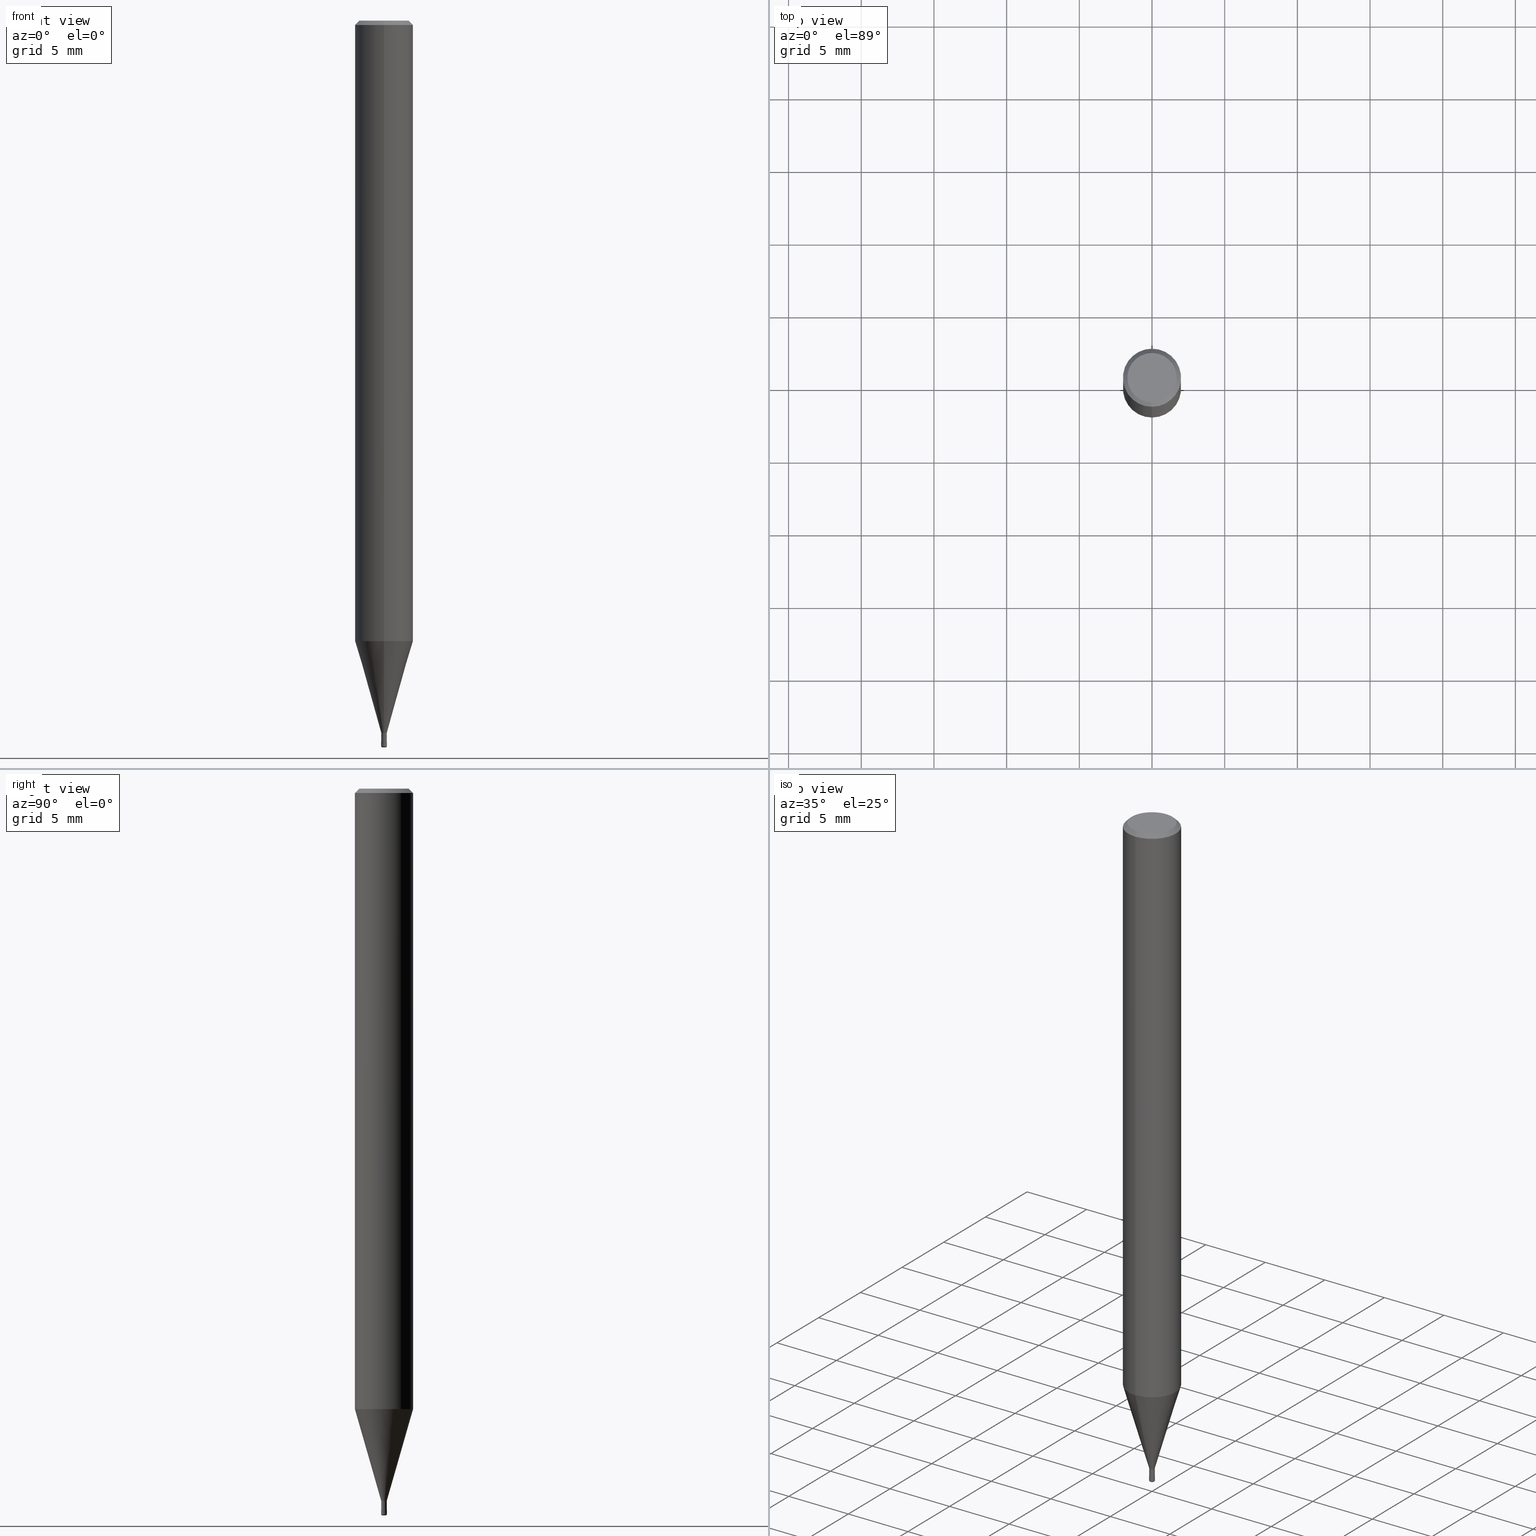
[diagram: canonical four-view strip — front | top / right | iso, engineering-drawing reading convention]
A machine part, canonical four-view strip (front | top / right | iso — engineering-drawing reading convention). The complete STEP part file that produces these views, byte-faithful:
ISO-10303-21;
HEADER;
FILE_DESCRIPTION(('no description'),'unknown implementation level');
FILE_NAME('HLRS2004-01-010-Huellk.stp','  ',('CIMSOURCE GmbH'),('CADClick - KiM GmbH - www.kimweb.de'),'unknown preprocess','ACIS','unknown authorization');
FILE_SCHEMA(('automotive_design'));
ENDSEC;
DATA;
#1=MECHANICAL_DESIGN_GEOMETRIC_PRESENTATION_REPRESENTATION(' ',(#14,#15,#16,#17,#18,#19,#20,#21,#22,#23,#24,#25,#26,#27,#28,#29,#30,#31,#32,#33,#34,#35,#36,#37,#38,#39,#40,#41,#42,#43,#44,#45,#46,#47,#48,#49,#50,#51,#52,#53,#54,#55,#56,#57,#58,#59,#60,#61,#62,#63,#64,#65,#66,#67,#68,#69,#70,#71,#72,#73,#74,#75,#76,#77,#78,#79,#80),#10);
#2=PRODUCT_DEFINITION_CONTEXT('',#81,'design');
#3=APPLICATION_PROTOCOL_DEFINITION('INTERNATIONAL STANDARD','automotive_design',1994,#81);
#4=PRODUCT_CATEGORY_RELATIONSHIP('NONE','NONE',#82,#83);
#5=SHAPE_DEFINITION_REPRESENTATION(#84,#85);
#6=PRODUCT_DEFINITION_CONTEXT('',#86,'design');
#7=APPLICATION_PROTOCOL_DEFINITION('INTERNATIONAL STANDARD','automotive_design',1994,#86);
#8=PRODUCT_CATEGORY_RELATIONSHIP('NONE','NONE',#87,#88);
#9=SHAPE_DEFINITION_REPRESENTATION(#89,#90);
#10= (GEOMETRIC_REPRESENTATION_CONTEXT(3)GLOBAL_UNCERTAINTY_ASSIGNED_CONTEXT((#93))GLOBAL_UNIT_ASSIGNED_CONTEXT((#95,#96,#97))REPRESENTATION_CONTEXT('NONE','WORKSPACE'));
#14=STYLED_ITEM('',(#99),#100);
#15=STYLED_ITEM('',(#101),#102);
#16=STYLED_ITEM('',(#103),#104);
#17=STYLED_ITEM('',(#105),#106);
#18=STYLED_ITEM('',(#107),#108);
#19=STYLED_ITEM('',(#109),#110);
#20=STYLED_ITEM('',(#111),#112);
#21=STYLED_ITEM('',(#113),#114);
#22=STYLED_ITEM('',(#115),#116);
#23=STYLED_ITEM('',(#117),#118);
#24=STYLED_ITEM('',(#119),#120);
#25=STYLED_ITEM('',(#121),#122);
#26=STYLED_ITEM('',(#123),#124);
#27=STYLED_ITEM('',(#125),#126);
#28=STYLED_ITEM('',(#127),#128);
#29=STYLED_ITEM('',(#129),#130);
#30=STYLED_ITEM('',(#131),#132);
#31=STYLED_ITEM('',(#133),#134);
#32=STYLED_ITEM('',(#135),#136);
#33=STYLED_ITEM('',(#137),#138);
#34=STYLED_ITEM('',(#139),#140);
#35=STYLED_ITEM('',(#141),#142);
#36=STYLED_ITEM('',(#143),#144);
#37=STYLED_ITEM('',(#145),#146);
#38=STYLED_ITEM('',(#147),#148);
#39=STYLED_ITEM('',(#149),#150);
#40=STYLED_ITEM('',(#151),#152);
#41=STYLED_ITEM('',(#153),#154);
#42=STYLED_ITEM('',(#155),#156);
#43=STYLED_ITEM('',(#157),#158);
#44=STYLED_ITEM('',(#159),#160);
#45=STYLED_ITEM('',(#161),#162);
#46=STYLED_ITEM('',(#163),#164);
#47=STYLED_ITEM('',(#165),#166);
#48=STYLED_ITEM('',(#167),#168);
#49=STYLED_ITEM('',(#169),#170);
#50=STYLED_ITEM('',(#171),#172);
#51=STYLED_ITEM('',(#173),#174);
#52=STYLED_ITEM('',(#175),#176);
#53=STYLED_ITEM('',(#177),#178);
#54=STYLED_ITEM('',(#179),#180);
#55=STYLED_ITEM('',(#181),#182);
#56=STYLED_ITEM('',(#183),#184);
#57=STYLED_ITEM('',(#185),#186);
#58=STYLED_ITEM('',(#187),#188);
#59=STYLED_ITEM('',(#189),#190);
#60=STYLED_ITEM('',(#191),#192);
#61=STYLED_ITEM('',(#193),#194);
#62=STYLED_ITEM('',(#195),#196);
#63=STYLED_ITEM('',(#197),#198);
#64=STYLED_ITEM('',(#199),#200);
#65=STYLED_ITEM('',(#201),#202);
#66=STYLED_ITEM('',(#203),#204);
#67=STYLED_ITEM('',(#205),#206);
#68=STYLED_ITEM('',(#207),#208);
#69=STYLED_ITEM('',(#209),#210);
#70=STYLED_ITEM('',(#211),#212);
#71=STYLED_ITEM('',(#213),#214);
#72=STYLED_ITEM('',(#215),#216);
#73=STYLED_ITEM('',(#217),#218);
#74=STYLED_ITEM('',(#219),#220);
#75=STYLED_ITEM('',(#221),#222);
#76=STYLED_ITEM('',(#223),#224);
#77=STYLED_ITEM('',(#225),#226);
#78=STYLED_ITEM('',(#227),#228);
#79=STYLED_ITEM('',(#229),#230);
#80=STYLED_ITEM('',(#231),#232);
#81=APPLICATION_CONTEXT(' ');
#82=PRODUCT_CATEGORY('part','NONE');
#83=PRODUCT_RELATED_PRODUCT_CATEGORY('detail',' ',(#233));
#84=PRODUCT_DEFINITION_SHAPE('NONE','NONE',#234);
#85=ADVANCED_BREP_SHAPE_REPRESENTATION('1',(#146,#235),#10);
#86=APPLICATION_CONTEXT(' ');
#87=PRODUCT_CATEGORY('part','NONE');
#88=PRODUCT_RELATED_PRODUCT_CATEGORY('detail',' ',(#236));
#89=PRODUCT_DEFINITION_SHAPE('NONE','NONE',#237);
#90=ADVANCED_BREP_SHAPE_REPRESENTATION('2',(#104,#238),#10);
#93=UNCERTAINTY_MEASURE_WITH_UNIT(LENGTH_MEASURE(1.0E-006),#95,'','');
#95= (CONVERSION_BASED_UNIT('MILLIMETRE',#241)LENGTH_UNIT()NAMED_UNIT(#244));
#96= (NAMED_UNIT(#246)PLANE_ANGLE_UNIT()SI_UNIT($,.RADIAN.));
#97= (NAMED_UNIT(#246)SOLID_ANGLE_UNIT()SI_UNIT($,.STERADIAN.));
#99=PRESENTATION_STYLE_ASSIGNMENT((#252));
#100=ADVANCED_FACE('',(#253),#254,.T.);
#101=PRESENTATION_STYLE_ASSIGNMENT((#255));
#102=VERTEX_POINT('',#256);
#103=PRESENTATION_STYLE_ASSIGNMENT((#257));
#104=MANIFOLD_SOLID_BREP('2',#258);
#105=PRESENTATION_STYLE_ASSIGNMENT((#259));
#106=VERTEX_POINT('',#260);
#107=PRESENTATION_STYLE_ASSIGNMENT((#261));
#108=EDGE_CURVE('',#208,#148,#262,.T.);
#109=PRESENTATION_STYLE_ASSIGNMENT((#263));
#110=EDGE_CURVE('',#172,#216,#264,.T.);
#111=PRESENTATION_STYLE_ASSIGNMENT((#265));
#112=EDGE_CURVE('',#168,#204,#266,.T.);
#113=PRESENTATION_STYLE_ASSIGNMENT((#267));
#114=EDGE_CURVE('',#216,#194,#268,.T.);
#115=PRESENTATION_STYLE_ASSIGNMENT((#269));
#116=VERTEX_POINT('',#270);
#117=PRESENTATION_STYLE_ASSIGNMENT((#271));
#118=ADVANCED_FACE('',(#272,#273),#274,.T.);
#119=PRESENTATION_STYLE_ASSIGNMENT((#275));
#120=ADVANCED_FACE('',(#276),#277,.T.);
#121=PRESENTATION_STYLE_ASSIGNMENT((#278));
#122=EDGE_CURVE('',#166,#218,#279,.T.);
#123=PRESENTATION_STYLE_ASSIGNMENT((#280));
#124=ADVANCED_FACE('',(#281),#282,.T.);
#125=PRESENTATION_STYLE_ASSIGNMENT((#283));
#126=EDGE_CURVE('',#172,#208,#284,.T.);
#127=PRESENTATION_STYLE_ASSIGNMENT((#285));
#128=EDGE_CURVE('',#174,#102,#286,.T.);
#129=PRESENTATION_STYLE_ASSIGNMENT((#287));
#130=EDGE_CURVE('',#136,#152,#288,.T.);
#131=PRESENTATION_STYLE_ASSIGNMENT((#289));
#132=EDGE_CURVE('',#232,#148,#290,.T.);
#133=PRESENTATION_STYLE_ASSIGNMENT((#291));
#134=EDGE_CURVE('',#116,#204,#292,.T.);
#135=PRESENTATION_STYLE_ASSIGNMENT((#293));
#136=VERTEX_POINT('',#294);
#137=PRESENTATION_STYLE_ASSIGNMENT((#295));
#138=EDGE_CURVE('',#152,#116,#296,.T.);
#139=PRESENTATION_STYLE_ASSIGNMENT((#297));
#140=EDGE_CURVE('',#152,#136,#298,.T.);
#141=PRESENTATION_STYLE_ASSIGNMENT((#299));
#142=VERTEX_POINT('',#300);
#143=PRESENTATION_STYLE_ASSIGNMENT((#301));
#144=EDGE_CURVE('',#194,#208,#302,.T.);
#145=PRESENTATION_STYLE_ASSIGNMENT((#303));
#146=MANIFOLD_SOLID_BREP('1',#304);
#147=PRESENTATION_STYLE_ASSIGNMENT((#305));
#148=VERTEX_POINT('',#306);
#149=PRESENTATION_STYLE_ASSIGNMENT((#307));
#150=EDGE_CURVE('',#166,#142,#308,.T.);
#151=PRESENTATION_STYLE_ASSIGNMENT((#309));
#152=VERTEX_POINT('',#310);
#153=PRESENTATION_STYLE_ASSIGNMENT((#311));
#154=EDGE_CURVE('',#208,#172,#312,.T.);
#155=PRESENTATION_STYLE_ASSIGNMENT((#313));
#156=EDGE_CURVE('',#166,#102,#314,.T.);
#157=PRESENTATION_STYLE_ASSIGNMENT((#315));
#158=ADVANCED_FACE('',(#316),#317,.T.);
#159=PRESENTATION_STYLE_ASSIGNMENT((#318));
#160=EDGE_CURVE('',#194,#216,#319,.T.);
#161=PRESENTATION_STYLE_ASSIGNMENT((#320));
#162=VERTEX_POINT('',#321);
#163=PRESENTATION_STYLE_ASSIGNMENT((#322));
#164=EDGE_CURVE('',#116,#106,#323,.T.);
#165=PRESENTATION_STYLE_ASSIGNMENT((#324));
#166=VERTEX_POINT('',#325);
#167=PRESENTATION_STYLE_ASSIGNMENT((#326));
#168=VERTEX_POINT('',#327);
#169=PRESENTATION_STYLE_ASSIGNMENT((#328));
#170=ADVANCED_FACE('',(#329),#330,.T.);
#171=PRESENTATION_STYLE_ASSIGNMENT((#331));
#172=VERTEX_POINT('',#332);
#173=PRESENTATION_STYLE_ASSIGNMENT((#333));
#174=VERTEX_POINT('',#334);
#175=PRESENTATION_STYLE_ASSIGNMENT((#335));
#176=ADVANCED_FACE('',(#336),#337,.T.);
#177=PRESENTATION_STYLE_ASSIGNMENT((#338));
#178=ADVANCED_FACE('',(#339),#340,.T.);
#179=PRESENTATION_STYLE_ASSIGNMENT((#341));
#180=ADVANCED_FACE('',(#342),#343,.T.);
#181=PRESENTATION_STYLE_ASSIGNMENT((#344));
#182=ADVANCED_FACE('',(#345),#346,.T.);
#183=PRESENTATION_STYLE_ASSIGNMENT((#347));
#184=EDGE_CURVE('',#102,#166,#348,.T.);
#185=PRESENTATION_STYLE_ASSIGNMENT((#349));
#186=ADVANCED_FACE('',(#350),#351,.T.);
#187=PRESENTATION_STYLE_ASSIGNMENT((#352));
#188=ADVANCED_FACE('',(#353),#354,.T.);
#189=PRESENTATION_STYLE_ASSIGNMENT((#355));
#190=EDGE_CURVE('',#148,#232,#356,.T.);
#191=PRESENTATION_STYLE_ASSIGNMENT((#357));
#192=EDGE_CURVE('',#232,#172,#358,.T.);
#193=PRESENTATION_STYLE_ASSIGNMENT((#359));
#194=VERTEX_POINT('',#360);
#195=PRESENTATION_STYLE_ASSIGNMENT((#361));
#196=EDGE_CURVE('',#106,#116,#362,.T.);
#197=PRESENTATION_STYLE_ASSIGNMENT((#363));
#198=EDGE_CURVE('',#218,#162,#364,.T.);
#199=PRESENTATION_STYLE_ASSIGNMENT((#365));
#200=ADVANCED_FACE('',(#366),#367,.T.);
#201=PRESENTATION_STYLE_ASSIGNMENT((#368));
#202=ADVANCED_FACE('',(#369),#370,.T.);
#203=PRESENTATION_STYLE_ASSIGNMENT((#371));
#204=VERTEX_POINT('',#372);
#205=PRESENTATION_STYLE_ASSIGNMENT((#373));
#206=EDGE_CURVE('',#168,#106,#374,.T.);
#207=PRESENTATION_STYLE_ASSIGNMENT((#375));
#208=VERTEX_POINT('',#376);
#209=PRESENTATION_STYLE_ASSIGNMENT((#377));
#210=EDGE_CURVE('',#204,#168,#378,.T.);
#211=PRESENTATION_STYLE_ASSIGNMENT((#379));
#212=ADVANCED_FACE('',(#380),#381,.T.);
#213=PRESENTATION_STYLE_ASSIGNMENT((#382));
#214=EDGE_CURVE('',#106,#136,#383,.T.);
#215=PRESENTATION_STYLE_ASSIGNMENT((#384));
#216=VERTEX_POINT('',#385);
#217=PRESENTATION_STYLE_ASSIGNMENT((#386));
#218=VERTEX_POINT('',#387);
#219=PRESENTATION_STYLE_ASSIGNMENT((#388));
#220=EDGE_CURVE('',#174,#142,#389,.T.);
#221=PRESENTATION_STYLE_ASSIGNMENT((#390));
#222=EDGE_CURVE('',#162,#218,#391,.T.);
#223=PRESENTATION_STYLE_ASSIGNMENT((#392));
#224=EDGE_CURVE('',#162,#102,#393,.T.);
#225=PRESENTATION_STYLE_ASSIGNMENT((#394));
#226=ADVANCED_FACE('',(#395),#396,.T.);
#227=PRESENTATION_STYLE_ASSIGNMENT((#397));
#228=ADVANCED_FACE('',(#398),#399,.T.);
#229=PRESENTATION_STYLE_ASSIGNMENT((#400));
#230=EDGE_CURVE('',#142,#174,#401,.T.);
#231=PRESENTATION_STYLE_ASSIGNMENT((#402));
#232=VERTEX_POINT('',#403);
#233=PRODUCT('1','1','PART-1-DESC',(#404));
#234=PRODUCT_DEFINITION('NONE','NONE',#405,#2);
#235=AXIS2_PLACEMENT_3D('',#406,#407,#408);
#236=PRODUCT('2','2','PART-2-DESC',(#409));
#237=PRODUCT_DEFINITION('NONE','NONE',#410,#6);
#238=AXIS2_PLACEMENT_3D('',#411,#412,#413);
#241=LENGTH_MEASURE_WITH_UNIT(LENGTH_MEASURE(1.0),#414);
#244=DIMENSIONAL_EXPONENTS(1.0,0.0,0.0,0.0,0.0,0.0,0.0);
#246=DIMENSIONAL_EXPONENTS(0.0,0.0,0.0,0.0,0.0,0.0,0.0);
#252=SURFACE_STYLE_USAGE(.BOTH.,#415);
#253=FACE_OUTER_BOUND('',#416,.T.);
#254=PLANE('',#417);
#255=POINT_STYLE(' ',#418,POSITIVE_LENGTH_MEASURE(1.0E-006),#419);
#256=CARTESIAN_POINT('',(0.0,0.2,-49.9));
#257=SURFACE_STYLE_USAGE(.BOTH.,#420);
#258=CLOSED_SHELL('',(#124,#178,#120,#158,#228,#100));
#259=POINT_STYLE(' ',#421,POSITIVE_LENGTH_MEASURE(1.0E-006),#422);
#260=CARTESIAN_POINT('',(2.44921270764475E-016,-2.0,-0.299999999999997));
#261=CURVE_STYLE('',#423,POSITIVE_LENGTH_MEASURE(1.0E-006),#424);
#262=LINE('',#425,#426);
#263=CURVE_STYLE('',#427,POSITIVE_LENGTH_MEASURE(1.0E-006),#428);
#264=LINE('',#429,#430);
#265=CURVE_STYLE('',#431,POSITIVE_LENGTH_MEASURE(1.0E-006),#432);
#266=CIRCLE('',#433,2.0);
#267=CURVE_STYLE('',#434,POSITIVE_LENGTH_MEASURE(1.0E-006),#435);
#268=CIRCLE('',#436,0.18995);
#269=POINT_STYLE(' ',#437,POSITIVE_LENGTH_MEASURE(1.0E-006),#438);
#270=CARTESIAN_POINT('',(0.0,2.0,-0.299999999999997));
#271=SURFACE_STYLE_USAGE(.BOTH.,#439);
#272=FACE_OUTER_BOUND('',#440,.T.);
#273=FACE_BOUND('',#441,.T.);
#274=PLANE('',#442);
#275=SURFACE_STYLE_USAGE(.BOTH.,#443);
#276=FACE_OUTER_BOUND('',#444,.T.);
#277=PLANE('',#445);
#278=CURVE_STYLE('',#446,POSITIVE_LENGTH_MEASURE(1.0E-006),#447);
#279=CIRCLE('',#448,0.1);
#280=SURFACE_STYLE_USAGE(.BOTH.,#449);
#281=FACE_OUTER_BOUND('',#450,.T.);
#282=TOROIDAL_SURFACE('',#451,0.0999999999999997,0.1);
#283=CURVE_STYLE('',#452,POSITIVE_LENGTH_MEASURE(1.0E-006),#453);
#284=CIRCLE('',#454,0.18995);
#285=CURVE_STYLE('',#455,POSITIVE_LENGTH_MEASURE(1.0E-006),#456);
#286=LINE('',#457,#458);
#287=CURVE_STYLE('',#459,POSITIVE_LENGTH_MEASURE(1.0E-006),#460);
#288=CIRCLE('',#461,1.7);
#289=CURVE_STYLE('',#462,POSITIVE_LENGTH_MEASURE(1.0E-006),#463);
#290=CIRCLE('',#464,1.99995);
#291=CURVE_STYLE('',#465,POSITIVE_LENGTH_MEASURE(1.0E-006),#466);
#292=LINE('',#467,#468);
#293=POINT_STYLE(' ',#469,POSITIVE_LENGTH_MEASURE(1.0E-006),#470);
#294=CARTESIAN_POINT('',(2.08183080149804E-016,-1.7,0.0));
#295=CURVE_STYLE('',#471,POSITIVE_LENGTH_MEASURE(1.0E-006),#472);
#296=LINE('',#473,#474);
#297=CURVE_STYLE('',#475,POSITIVE_LENGTH_MEASURE(1.0E-006),#476);
#298=CIRCLE('',#477,1.7);
#299=POINT_STYLE(' ',#478,POSITIVE_LENGTH_MEASURE(1.0E-006),#479);
#300=CARTESIAN_POINT('',(2.44798810129093E-017,-0.1999,-49.6));
#301=CURVE_STYLE('',#480,POSITIVE_LENGTH_MEASURE(1.0E-006),#481);
#302=LINE('',#482,#483);
#303=SURFACE_STYLE_USAGE(.BOTH.,#484);
#304=CLOSED_SHELL('',(#200,#186,#182,#202,#118,#180,#226,#176,#188,#170,#212));
#305=POINT_STYLE(' ',#485,POSITIVE_LENGTH_MEASURE(1.0E-006),#486);
#306=CARTESIAN_POINT('',(2.44915147732706E-016,-1.99995,-42.688));
#307=CURVE_STYLE('',#487,POSITIVE_LENGTH_MEASURE(1.0E-006),#488);
#308=LINE('',#489,#490);
#309=POINT_STYLE(' ',#491,POSITIVE_LENGTH_MEASURE(1.0E-006),#492);
#310=CARTESIAN_POINT('',(0.0,1.7,0.0));
#311=CURVE_STYLE('',#493,POSITIVE_LENGTH_MEASURE(1.0E-006),#494);
#312=CIRCLE('',#495,0.18995);
#313=CURVE_STYLE('',#496,POSITIVE_LENGTH_MEASURE(1.0E-006),#497);
#314=CIRCLE('',#498,0.2);
#315=SURFACE_STYLE_USAGE(.BOTH.,#499);
#316=FACE_OUTER_BOUND('',#500,.T.);
#317=CONICAL_SURFACE('',#501,0.19995,0.000333333320987711);
#318=CURVE_STYLE('',#502,POSITIVE_LENGTH_MEASURE(1.0E-006),#503);
#319=CIRCLE('',#504,0.18995);
#320=POINT_STYLE(' ',#505,POSITIVE_LENGTH_MEASURE(1.0E-006),#506);
#321=CARTESIAN_POINT('',(0.0,0.1,-50.0));
#322=CURVE_STYLE('',#507,POSITIVE_LENGTH_MEASURE(1.0E-006),#508);
#323=CIRCLE('',#509,2.0);
#324=POINT_STYLE(' ',#510,POSITIVE_LENGTH_MEASURE(1.0E-006),#511);
#325=CARTESIAN_POINT('',(2.44921270764475E-017,-0.2,-49.9));
#326=POINT_STYLE(' ',#512,POSITIVE_LENGTH_MEASURE(1.0E-006),#513);
#327=CARTESIAN_POINT('',(2.44921270764475E-016,-2.0,-42.688));
#328=SURFACE_STYLE_USAGE(.BOTH.,#514);
#329=FACE_OUTER_BOUND('',#515,.T.);
#330=CYLINDRICAL_SURFACE('',#516,0.18995);
#331=POINT_STYLE(' ',#517,POSITIVE_LENGTH_MEASURE(1.0E-006),#518);
#332=CARTESIAN_POINT('',(0.0,0.18995,-49.0));
#333=POINT_STYLE(' ',#519,POSITIVE_LENGTH_MEASURE(1.0E-006),#520);
#334=CARTESIAN_POINT('',(0.0,0.1999,-49.6));
#335=SURFACE_STYLE_USAGE(.BOTH.,#521);
#336=FACE_OUTER_BOUND('',#522,.T.);
#337=CYLINDRICAL_SURFACE('',#523,2.0);
#338=SURFACE_STYLE_USAGE(.BOTH.,#524);
#339=FACE_OUTER_BOUND('',#525,.T.);
#340=CONICAL_SURFACE('',#526,0.19995,0.000333333320987711);
#341=SURFACE_STYLE_USAGE(.BOTH.,#527);
#342=FACE_OUTER_BOUND('',#528,.T.);
#343=PLANE('',#529);
#344=SURFACE_STYLE_USAGE(.BOTH.,#530);
#345=FACE_OUTER_BOUND('',#531,.T.);
#346=CYLINDRICAL_SURFACE('',#532,2.0);
#347=CURVE_STYLE('',#533,POSITIVE_LENGTH_MEASURE(1.0E-006),#534);
#348=CIRCLE('',#535,0.2);
#349=SURFACE_STYLE_USAGE(.BOTH.,#536);
#350=FACE_OUTER_BOUND('',#537,.T.);
#351=CONICAL_SURFACE('',#538,1.09495,0.279261921280279);
#352=SURFACE_STYLE_USAGE(.BOTH.,#539);
#353=FACE_OUTER_BOUND('',#540,.T.);
#354=CONICAL_SURFACE('',#541,1.09495,0.279261921280279);
#355=CURVE_STYLE('',#542,POSITIVE_LENGTH_MEASURE(1.0E-006),#543);
#356=CIRCLE('',#544,1.99995);
#357=CURVE_STYLE('',#545,POSITIVE_LENGTH_MEASURE(1.0E-006),#546);
#358=LINE('',#547,#548);
#359=POINT_STYLE(' ',#549,POSITIVE_LENGTH_MEASURE(1.0E-006),#550);
#360=CARTESIAN_POINT('',(2.32613976908561E-017,-0.18995,-49.6));
#361=CURVE_STYLE('',#551,POSITIVE_LENGTH_MEASURE(1.0E-006),#552);
#362=CIRCLE('',#553,2.0);
#363=CURVE_STYLE('',#554,POSITIVE_LENGTH_MEASURE(1.0E-006),#555);
#364=CIRCLE('',#556,0.1);
#365=SURFACE_STYLE_USAGE(.BOTH.,#557);
#366=FACE_OUTER_BOUND('',#558,.T.);
#367=CYLINDRICAL_SURFACE('',#559,0.18995);
#368=SURFACE_STYLE_USAGE(.BOTH.,#560);
#369=FACE_OUTER_BOUND('',#561,.T.);
#370=CONICAL_SURFACE('',#562,1.85,0.785398163397453);
#371=POINT_STYLE(' ',#563,POSITIVE_LENGTH_MEASURE(1.0E-006),#564);
#372=CARTESIAN_POINT('',(0.0,2.0,-42.688));
#373=CURVE_STYLE('',#565,POSITIVE_LENGTH_MEASURE(1.0E-006),#566);
#374=LINE('',#567,#568);
#375=POINT_STYLE(' ',#569,POSITIVE_LENGTH_MEASURE(1.0E-006),#570);
#376=CARTESIAN_POINT('',(2.3261397690856E-017,-0.18995,-49.0));
#377=CURVE_STYLE('',#571,POSITIVE_LENGTH_MEASURE(1.0E-006),#572);
#378=CIRCLE('',#573,2.0);
#379=SURFACE_STYLE_USAGE(.BOTH.,#574);
#380=FACE_OUTER_BOUND('',#575,.T.);
#381=PLANE('',#576);
#382=CURVE_STYLE('',#577,POSITIVE_LENGTH_MEASURE(1.0E-006),#578);
#383=LINE('',#579,#580);
#384=POINT_STYLE(' ',#581,POSITIVE_LENGTH_MEASURE(1.0E-006),#582);
#385=CARTESIAN_POINT('',(0.0,0.18995,-49.6));
#386=POINT_STYLE(' ',#583,POSITIVE_LENGTH_MEASURE(1.0E-006),#584);
#387=CARTESIAN_POINT('',(1.22460635382238E-017,-0.1,-50.0));
#388=CURVE_STYLE('',#585,POSITIVE_LENGTH_MEASURE(1.0E-006),#586);
#389=CIRCLE('',#587,0.1999);
#390=CURVE_STYLE('',#588,POSITIVE_LENGTH_MEASURE(1.0E-006),#589);
#391=CIRCLE('',#590,0.1);
#392=CURVE_STYLE('',#591,POSITIVE_LENGTH_MEASURE(1.0E-006),#592);
#393=CIRCLE('',#593,0.1);
#394=SURFACE_STYLE_USAGE(.BOTH.,#594);
#395=FACE_OUTER_BOUND('',#595,.T.);
#396=CONICAL_SURFACE('',#596,1.85,0.785398163397453);
#397=SURFACE_STYLE_USAGE(.BOTH.,#597);
#398=FACE_OUTER_BOUND('',#598,.T.);
#399=TOROIDAL_SURFACE('',#599,0.0999999999999997,0.1);
#400=CURVE_STYLE('',#600,POSITIVE_LENGTH_MEASURE(1.0E-006),#601);
#401=CIRCLE('',#602,0.1999);
#402=POINT_STYLE(' ',#603,POSITIVE_LENGTH_MEASURE(1.0E-006),#604);
#403=CARTESIAN_POINT('',(0.0,1.99995,-42.688));
#404=PRODUCT_CONTEXT('',#81,'mechanical');
#405=PRODUCT_DEFINITION_FORMATION_WITH_SPECIFIED_SOURCE(' ','NONE',#233,.NOT_KNOWN.);
#406=CARTESIAN_POINT('',(0.0,0.0,0.0));
#407=DIRECTION('',(0.0,0.0,1.0));
#408=DIRECTION('',(1.0,0.0,0.0));
#409=PRODUCT_CONTEXT('',#86,'mechanical');
#410=PRODUCT_DEFINITION_FORMATION_WITH_SPECIFIED_SOURCE(' ','NONE',#236,.NOT_KNOWN.);
#411=CARTESIAN_POINT('',(0.0,0.0,0.0));
#412=DIRECTION('',(0.0,0.0,1.0));
#413=DIRECTION('',(1.0,0.0,0.0));
#414= (NAMED_UNIT(#244)LENGTH_UNIT()SI_UNIT(.MILLI.,.METRE.));
#415=SURFACE_SIDE_STYLE('',(#606));
#416=EDGE_LOOP('',(#607,#608));
#417=AXIS2_PLACEMENT_3D('',#609,#610,#611);
#418=PRE_DEFINED_MARKER('');
#419=COLOUR_RGB('',0.800000011920929,0.800000011920929,0.800000011920929);
#420=SURFACE_SIDE_STYLE('',(#612));
#421=PRE_DEFINED_MARKER('');
#422=COLOUR_RGB('',0.498039215803146,0.498039215803146,0.498039215803146);
#423=DRAUGHTING_PRE_DEFINED_CURVE_FONT('continuous');
#424=COLOUR_RGB('',0.498039215803146,0.498039215803146,0.498039215803146);
#425=CARTESIAN_POINT('',(1.34088272711781E-016,-1.09495,-45.844));
#426=VECTOR('',#613,1.0);
#427=DRAUGHTING_PRE_DEFINED_CURVE_FONT('continuous');
#428=COLOUR_RGB('',0.498039215803146,0.498039215803146,0.498039215803146);
#429=CARTESIAN_POINT('',(-2.32613976908561E-017,0.18995,-49.3));
#430=VECTOR('',#614,1.0);
#431=DRAUGHTING_PRE_DEFINED_CURVE_FONT('continuous');
#432=COLOUR_RGB('',0.498039215803146,0.498039215803146,0.498039215803146);
#433=AXIS2_PLACEMENT_3D('',#615,#616,#617);
#434=DRAUGHTING_PRE_DEFINED_CURVE_FONT('continuous');
#435=COLOUR_RGB('',0.498039215803146,0.498039215803146,0.498039215803146);
#436=AXIS2_PLACEMENT_3D('',#618,#619,#620);
#437=PRE_DEFINED_MARKER('');
#438=COLOUR_RGB('',0.498039215803146,0.498039215803146,0.498039215803146);
#439=SURFACE_SIDE_STYLE('',(#621));
#440=EDGE_LOOP('',(#622,#623));
#441=EDGE_LOOP('',(#624,#625));
#442=AXIS2_PLACEMENT_3D('',#626,#627,#628);
#443=SURFACE_SIDE_STYLE('',(#629));
#444=EDGE_LOOP('',(#630,#631));
#445=AXIS2_PLACEMENT_3D('',#632,#633,#634);
#446=DRAUGHTING_PRE_DEFINED_CURVE_FONT('continuous');
#447=COLOUR_RGB('',0.800000011920929,0.800000011920929,0.800000011920929);
#448=AXIS2_PLACEMENT_3D('',#635,#636,#637);
#449=SURFACE_SIDE_STYLE('',(#638));
#450=EDGE_LOOP('',(#639,#640,#641,#642));
#451=AXIS2_PLACEMENT_3D('',#643,#644,#645);
#452=DRAUGHTING_PRE_DEFINED_CURVE_FONT('continuous');
#453=COLOUR_RGB('',0.498039215803146,0.498039215803146,0.498039215803146);
#454=AXIS2_PLACEMENT_3D('',#646,#647,#648);
#455=DRAUGHTING_PRE_DEFINED_CURVE_FONT('continuous');
#456=COLOUR_RGB('',0.800000011920929,0.800000011920929,0.800000011920929);
#457=CARTESIAN_POINT('',(-2.44860040446784E-017,0.19995,-49.75));
#458=VECTOR('',#649,1.0);
#459=DRAUGHTING_PRE_DEFINED_CURVE_FONT('continuous');
#460=COLOUR_RGB('',0.498039215803146,0.498039215803146,0.498039215803146);
#461=AXIS2_PLACEMENT_3D('',#650,#651,#652);
#462=DRAUGHTING_PRE_DEFINED_CURVE_FONT('continuous');
#463=COLOUR_RGB('',0.498039215803146,0.498039215803146,0.498039215803146);
#464=AXIS2_PLACEMENT_3D('',#653,#654,#655);
#465=DRAUGHTING_PRE_DEFINED_CURVE_FONT('continuous');
#466=COLOUR_RGB('',0.498039215803146,0.498039215803146,0.498039215803146);
#467=CARTESIAN_POINT('',(-2.44921270764475E-016,2.0,-21.494));
#468=VECTOR('',#656,1.0);
#469=PRE_DEFINED_MARKER('');
#470=COLOUR_RGB('',0.498039215803146,0.498039215803146,0.498039215803146);
#471=DRAUGHTING_PRE_DEFINED_CURVE_FONT('continuous');
#472=COLOUR_RGB('',0.498039215803146,0.498039215803146,0.498039215803146);
#473=CARTESIAN_POINT('',(-2.2655217545714E-016,1.85,-0.149999999999999));
#474=VECTOR('',#657,1.0);
#475=DRAUGHTING_PRE_DEFINED_CURVE_FONT('continuous');
#476=COLOUR_RGB('',0.498039215803146,0.498039215803146,0.498039215803146);
#477=AXIS2_PLACEMENT_3D('',#658,#659,#660);
#478=PRE_DEFINED_MARKER('');
#479=COLOUR_RGB('',0.800000011920929,0.800000011920929,0.800000011920929);
#480=DRAUGHTING_PRE_DEFINED_CURVE_FONT('continuous');
#481=COLOUR_RGB('',0.498039215803146,0.498039215803146,0.498039215803146);
#482=CARTESIAN_POINT('',(2.32613976908561E-017,-0.18995,-49.3));
#483=VECTOR('',#661,1.0);
#484=SURFACE_SIDE_STYLE('',(#662));
#485=PRE_DEFINED_MARKER('');
#486=COLOUR_RGB('',0.498039215803146,0.498039215803146,0.498039215803146);
#487=DRAUGHTING_PRE_DEFINED_CURVE_FONT('continuous');
#488=COLOUR_RGB('',0.800000011920929,0.800000011920929,0.800000011920929);
#489=CARTESIAN_POINT('',(2.44860040446784E-017,-0.19995,-49.75));
#490=VECTOR('',#663,1.0);
#491=PRE_DEFINED_MARKER('');
#492=COLOUR_RGB('',0.498039215803146,0.498039215803146,0.498039215803146);
#493=DRAUGHTING_PRE_DEFINED_CURVE_FONT('continuous');
#494=COLOUR_RGB('',0.498039215803146,0.498039215803146,0.498039215803146);
#495=AXIS2_PLACEMENT_3D('',#664,#665,#666);
#496=DRAUGHTING_PRE_DEFINED_CURVE_FONT('continuous');
#497=COLOUR_RGB('',0.800000011920929,0.800000011920929,0.800000011920929);
#498=AXIS2_PLACEMENT_3D('',#667,#668,#669);
#499=SURFACE_SIDE_STYLE('',(#670));
#500=EDGE_LOOP('',(#671,#672,#673,#674));
#501=AXIS2_PLACEMENT_3D('',#675,#676,#677);
#502=DRAUGHTING_PRE_DEFINED_CURVE_FONT('continuous');
#503=COLOUR_RGB('',0.498039215803146,0.498039215803146,0.498039215803146);
#504=AXIS2_PLACEMENT_3D('',#678,#679,#680);
#505=PRE_DEFINED_MARKER('');
#506=COLOUR_RGB('',0.800000011920929,0.800000011920929,0.800000011920929);
#507=DRAUGHTING_PRE_DEFINED_CURVE_FONT('continuous');
#508=COLOUR_RGB('',0.498039215803146,0.498039215803146,0.498039215803146);
#509=AXIS2_PLACEMENT_3D('',#681,#682,#683);
#510=PRE_DEFINED_MARKER('');
#511=COLOUR_RGB('',0.800000011920929,0.800000011920929,0.800000011920929);
#512=PRE_DEFINED_MARKER('');
#513=COLOUR_RGB('',0.498039215803146,0.498039215803146,0.498039215803146);
#514=SURFACE_SIDE_STYLE('',(#684));
#515=EDGE_LOOP('',(#685,#686,#687,#688));
#516=AXIS2_PLACEMENT_3D('',#689,#690,#691);
#517=PRE_DEFINED_MARKER('');
#518=COLOUR_RGB('',0.498039215803146,0.498039215803146,0.498039215803146);
#519=PRE_DEFINED_MARKER('');
#520=COLOUR_RGB('',0.800000011920929,0.800000011920929,0.800000011920929);
#521=SURFACE_SIDE_STYLE('',(#692));
#522=EDGE_LOOP('',(#693,#694,#695,#696));
#523=AXIS2_PLACEMENT_3D('',#697,#698,#699);
#524=SURFACE_SIDE_STYLE('',(#700));
#525=EDGE_LOOP('',(#701,#702,#703,#704));
#526=AXIS2_PLACEMENT_3D('',#705,#706,#707);
#527=SURFACE_SIDE_STYLE('',(#708));
#528=EDGE_LOOP('',(#709,#710));
#529=AXIS2_PLACEMENT_3D('',#711,#712,#713);
#530=SURFACE_SIDE_STYLE('',(#714));
#531=EDGE_LOOP('',(#715,#716,#717,#718));
#532=AXIS2_PLACEMENT_3D('',#719,#720,#721);
#533=DRAUGHTING_PRE_DEFINED_CURVE_FONT('continuous');
#534=COLOUR_RGB('',0.800000011920929,0.800000011920929,0.800000011920929);
#535=AXIS2_PLACEMENT_3D('',#722,#723,#724);
#536=SURFACE_SIDE_STYLE('',(#725));
#537=EDGE_LOOP('',(#726,#727,#728,#729));
#538=AXIS2_PLACEMENT_3D('',#730,#731,#732);
#539=SURFACE_SIDE_STYLE('',(#733));
#540=EDGE_LOOP('',(#734,#735,#736,#737));
#541=AXIS2_PLACEMENT_3D('',#738,#739,#740);
#542=DRAUGHTING_PRE_DEFINED_CURVE_FONT('continuous');
#543=COLOUR_RGB('',0.498039215803146,0.498039215803146,0.498039215803146);
#544=AXIS2_PLACEMENT_3D('',#741,#742,#743);
#545=DRAUGHTING_PRE_DEFINED_CURVE_FONT('continuous');
#546=COLOUR_RGB('',0.498039215803146,0.498039215803146,0.498039215803146);
#547=CARTESIAN_POINT('',(-1.34088272711781E-016,1.09495,-45.844));
#548=VECTOR('',#744,1.0);
#549=PRE_DEFINED_MARKER('');
#550=COLOUR_RGB('',0.498039215803146,0.498039215803146,0.498039215803146);
#551=DRAUGHTING_PRE_DEFINED_CURVE_FONT('continuous');
#552=COLOUR_RGB('',0.498039215803146,0.498039215803146,0.498039215803146);
#553=AXIS2_PLACEMENT_3D('',#745,#746,#747);
#554=DRAUGHTING_PRE_DEFINED_CURVE_FONT('continuous');
#555=COLOUR_RGB('',0.800000011920929,0.800000011920929,0.800000011920929);
#556=AXIS2_PLACEMENT_3D('',#748,#749,#750);
#557=SURFACE_SIDE_STYLE('',(#751));
#558=EDGE_LOOP('',(#752,#753,#754,#755));
#559=AXIS2_PLACEMENT_3D('',#756,#757,#758);
#560=SURFACE_SIDE_STYLE('',(#759));
#561=EDGE_LOOP('',(#760,#761,#762,#763));
#562=AXIS2_PLACEMENT_3D('',#764,#765,#766);
#563=PRE_DEFINED_MARKER('');
#564=COLOUR_RGB('',0.498039215803146,0.498039215803146,0.498039215803146);
#565=DRAUGHTING_PRE_DEFINED_CURVE_FONT('continuous');
#566=COLOUR_RGB('',0.498039215803146,0.498039215803146,0.498039215803146);
#567=CARTESIAN_POINT('',(2.44921270764475E-016,-2.0,-21.494));
#568=VECTOR('',#767,1.0);
#569=PRE_DEFINED_MARKER('');
#570=COLOUR_RGB('',0.498039215803146,0.498039215803146,0.498039215803146);
#571=DRAUGHTING_PRE_DEFINED_CURVE_FONT('continuous');
#572=COLOUR_RGB('',0.498039215803146,0.498039215803146,0.498039215803146);
#573=AXIS2_PLACEMENT_3D('',#768,#769,#770);
#574=SURFACE_SIDE_STYLE('',(#771));
#575=EDGE_LOOP('',(#772,#773));
#576=AXIS2_PLACEMENT_3D('',#774,#775,#776);
#577=DRAUGHTING_PRE_DEFINED_CURVE_FONT('continuous');
#578=COLOUR_RGB('',0.498039215803146,0.498039215803146,0.498039215803146);
#579=CARTESIAN_POINT('',(2.2655217545714E-016,-1.85,-0.149999999999999));
#580=VECTOR('',#777,1.0);
#581=PRE_DEFINED_MARKER('');
#582=COLOUR_RGB('',0.498039215803146,0.498039215803146,0.498039215803146);
#583=PRE_DEFINED_MARKER('');
#584=COLOUR_RGB('',0.800000011920929,0.800000011920929,0.800000011920929);
#585=DRAUGHTING_PRE_DEFINED_CURVE_FONT('continuous');
#586=COLOUR_RGB('',0.800000011920929,0.800000011920929,0.800000011920929);
#587=AXIS2_PLACEMENT_3D('',#778,#779,#780);
#588=DRAUGHTING_PRE_DEFINED_CURVE_FONT('continuous');
#589=COLOUR_RGB('',0.800000011920929,0.800000011920929,0.800000011920929);
#590=AXIS2_PLACEMENT_3D('',#781,#782,#783);
#591=DRAUGHTING_PRE_DEFINED_CURVE_FONT('continuous');
#592=COLOUR_RGB('',0.800000011920929,0.800000011920929,0.800000011920929);
#593=AXIS2_PLACEMENT_3D('',#784,#785,#786);
#594=SURFACE_SIDE_STYLE('',(#787));
#595=EDGE_LOOP('',(#788,#789,#790,#791));
#596=AXIS2_PLACEMENT_3D('',#792,#793,#794);
#597=SURFACE_SIDE_STYLE('',(#795));
#598=EDGE_LOOP('',(#796,#797,#798,#799));
#599=AXIS2_PLACEMENT_3D('',#800,#801,#802);
#600=DRAUGHTING_PRE_DEFINED_CURVE_FONT('continuous');
#601=COLOUR_RGB('',0.800000011920929,0.800000011920929,0.800000011920929);
#602=AXIS2_PLACEMENT_3D('',#803,#804,#805);
#603=PRE_DEFINED_MARKER('');
#604=COLOUR_RGB('',0.498039215803146,0.498039215803146,0.498039215803146);
#606=SURFACE_STYLE_FILL_AREA(#806);
#607=ORIENTED_EDGE('',*,*,#222,.T.);
#608=ORIENTED_EDGE('',*,*,#198,.T.);
#609=CARTESIAN_POINT('',(0.0,0.05,-50.0));
#610=DIRECTION('',(0.0,0.0,-1.0));
#611=DIRECTION('',(0.0,1.0,0.0));
#612=SURFACE_STYLE_FILL_AREA(#807);
#613=DIRECTION('',(3.37558135426109E-017,-0.275646238787252,0.961259148743169));
#614=DIRECTION('',(0.0,0.0,-1.0));
#615=CARTESIAN_POINT('',(0.0,0.0,-42.688));
#616=DIRECTION('',(0.0,0.0,-1.0));
#617=DIRECTION('',(0.0,1.0,0.0));
#618=CARTESIAN_POINT('',(0.0,0.0,-49.6));
#619=DIRECTION('',(0.0,0.0,-1.0));
#620=DIRECTION('',(0.0,1.0,0.0));
#621=SURFACE_STYLE_FILL_AREA(#808);
#622=ORIENTED_EDGE('',*,*,#210,.T.);
#623=ORIENTED_EDGE('',*,*,#112,.T.);
#624=ORIENTED_EDGE('',*,*,#132,.F.);
#625=ORIENTED_EDGE('',*,*,#190,.F.);
#626=CARTESIAN_POINT('',(0.0,1.0,-42.688));
#627=DIRECTION('',(0.0,0.0,-1.0));
#628=DIRECTION('',(0.0,1.0,0.0));
#629=SURFACE_STYLE_FILL_AREA(#809);
#630=ORIENTED_EDGE('',*,*,#220,.F.);
#631=ORIENTED_EDGE('',*,*,#230,.F.);
#632=CARTESIAN_POINT('',(0.0,0.09995,-49.6));
#633=DIRECTION('',(-0.0,0.0,1.0));
#634=DIRECTION('',(0.0,-1.0,0.0));
#635=CARTESIAN_POINT('',(1.22460635382237E-017,-0.0999999999999997,-49.9));
#636=DIRECTION('',(1.0,1.22460635382238E-016,0.0));
#637=DIRECTION('',(1.22460635382238E-016,-1.0,-0.0));
#638=SURFACE_STYLE_FILL_AREA(#810);
#639=ORIENTED_EDGE('',*,*,#122,.F.);
#640=ORIENTED_EDGE('',*,*,#156,.T.);
#641=ORIENTED_EDGE('',*,*,#224,.F.);
#642=ORIENTED_EDGE('',*,*,#198,.F.);
#643=CARTESIAN_POINT('',(0.0,0.0,-49.9));
#644=DIRECTION('',(0.0,0.0,-1.0));
#645=DIRECTION('',(0.0,-1.0,0.0));
#646=CARTESIAN_POINT('',(0.0,0.0,-49.0));
#647=DIRECTION('',(0.0,0.0,-1.0));
#648=DIRECTION('',(0.0,1.0,0.0));
#649=DIRECTION('',(-4.08202095262967E-020,0.000333333314814872,-0.999999944444449));
#650=CARTESIAN_POINT('',(0.0,0.0,0.0));
#651=DIRECTION('',(0.0,0.0,-1.0));
#652=DIRECTION('',(0.0,1.0,0.0));
#653=CARTESIAN_POINT('',(0.0,0.0,-42.688));
#654=DIRECTION('',(0.0,0.0,-1.0));
#655=DIRECTION('',(0.0,1.0,0.0));
#656=DIRECTION('',(0.0,0.0,-1.0));
#657=DIRECTION('',(-8.6592745707194E-017,0.707106781186551,-0.707106781186544));
#658=CARTESIAN_POINT('',(0.0,0.0,0.0));
#659=DIRECTION('',(0.0,0.0,-1.0));
#660=DIRECTION('',(0.0,1.0,0.0));
#661=DIRECTION('',(-0.0,-0.0,1.0));
#662=SURFACE_STYLE_FILL_AREA(#811);
#663=DIRECTION('',(-4.08202095262967E-020,0.000333333314814872,0.999999944444449));
#664=CARTESIAN_POINT('',(0.0,0.0,-49.0));
#665=DIRECTION('',(0.0,0.0,-1.0));
#666=DIRECTION('',(0.0,1.0,0.0));
#667=CARTESIAN_POINT('',(0.0,0.0,-49.9));
#668=DIRECTION('',(0.0,0.0,-1.0));
#669=DIRECTION('',(0.0,1.0,0.0));
#670=SURFACE_STYLE_FILL_AREA(#812);
#671=ORIENTED_EDGE('',*,*,#128,.T.);
#672=ORIENTED_EDGE('',*,*,#156,.F.);
#673=ORIENTED_EDGE('',*,*,#150,.T.);
#674=ORIENTED_EDGE('',*,*,#230,.T.);
#675=CARTESIAN_POINT('',(0.0,0.0,-49.75));
#676=DIRECTION('',(0.0,-0.0,-1.0));
#677=DIRECTION('',(0.0,1.0,0.0));
#678=CARTESIAN_POINT('',(0.0,0.0,-49.6));
#679=DIRECTION('',(0.0,0.0,-1.0));
#680=DIRECTION('',(0.0,1.0,0.0));
#681=CARTESIAN_POINT('',(0.0,0.0,-0.299999999999997));
#682=DIRECTION('',(0.0,0.0,-1.0));
#683=DIRECTION('',(0.0,1.0,0.0));
#684=SURFACE_STYLE_FILL_AREA(#813);
#685=ORIENTED_EDGE('',*,*,#110,.T.);
#686=ORIENTED_EDGE('',*,*,#160,.F.);
#687=ORIENTED_EDGE('',*,*,#144,.T.);
#688=ORIENTED_EDGE('',*,*,#154,.T.);
#689=CARTESIAN_POINT('',(0.0,0.0,-49.3));
#690=DIRECTION('',(-0.0,-0.0,1.0));
#691=DIRECTION('',(0.0,1.0,0.0));
#692=SURFACE_STYLE_FILL_AREA(#814);
#693=ORIENTED_EDGE('',*,*,#134,.T.);
#694=ORIENTED_EDGE('',*,*,#112,.F.);
#695=ORIENTED_EDGE('',*,*,#206,.T.);
#696=ORIENTED_EDGE('',*,*,#196,.T.);
#697=CARTESIAN_POINT('',(0.0,0.0,-21.494));
#698=DIRECTION('',(-0.0,-0.0,1.0));
#699=DIRECTION('',(0.0,1.0,0.0));
#700=SURFACE_STYLE_FILL_AREA(#815);
#701=ORIENTED_EDGE('',*,*,#128,.F.);
#702=ORIENTED_EDGE('',*,*,#220,.T.);
#703=ORIENTED_EDGE('',*,*,#150,.F.);
#704=ORIENTED_EDGE('',*,*,#184,.F.);
#705=CARTESIAN_POINT('',(0.0,0.0,-49.75));
#706=DIRECTION('',(0.0,-0.0,-1.0));
#707=DIRECTION('',(0.0,1.0,0.0));
#708=SURFACE_STYLE_FILL_AREA(#816);
#709=ORIENTED_EDGE('',*,*,#140,.F.);
#710=ORIENTED_EDGE('',*,*,#130,.F.);
#711=CARTESIAN_POINT('',(0.0,0.85,0.0));
#712=DIRECTION('',(-0.0,0.0,1.0));
#713=DIRECTION('',(0.0,-1.0,0.0));
#714=SURFACE_STYLE_FILL_AREA(#817);
#715=ORIENTED_EDGE('',*,*,#134,.F.);
#716=ORIENTED_EDGE('',*,*,#164,.T.);
#717=ORIENTED_EDGE('',*,*,#206,.F.);
#718=ORIENTED_EDGE('',*,*,#210,.F.);
#719=CARTESIAN_POINT('',(0.0,0.0,-21.494));
#720=DIRECTION('',(-0.0,-0.0,1.0));
#721=DIRECTION('',(0.0,1.0,0.0));
#722=CARTESIAN_POINT('',(0.0,0.0,-49.9));
#723=DIRECTION('',(0.0,0.0,-1.0));
#724=DIRECTION('',(0.0,1.0,0.0));
#725=SURFACE_STYLE_FILL_AREA(#818);
#726=ORIENTED_EDGE('',*,*,#192,.F.);
#727=ORIENTED_EDGE('',*,*,#132,.T.);
#728=ORIENTED_EDGE('',*,*,#108,.F.);
#729=ORIENTED_EDGE('',*,*,#126,.F.);
#730=CARTESIAN_POINT('',(0.0,0.0,-45.844));
#731=DIRECTION('',(-0.0,-0.0,1.0));
#732=DIRECTION('',(0.0,1.0,0.0));
#733=SURFACE_STYLE_FILL_AREA(#819);
#734=ORIENTED_EDGE('',*,*,#192,.T.);
#735=ORIENTED_EDGE('',*,*,#154,.F.);
#736=ORIENTED_EDGE('',*,*,#108,.T.);
#737=ORIENTED_EDGE('',*,*,#190,.T.);
#738=CARTESIAN_POINT('',(0.0,0.0,-45.844));
#739=DIRECTION('',(-0.0,-0.0,1.0));
#740=DIRECTION('',(0.0,1.0,0.0));
#741=CARTESIAN_POINT('',(0.0,0.0,-42.688));
#742=DIRECTION('',(0.0,0.0,-1.0));
#743=DIRECTION('',(0.0,1.0,0.0));
#744=DIRECTION('',(3.37558135426109E-017,-0.275646238787252,-0.961259148743169));
#745=CARTESIAN_POINT('',(0.0,0.0,-0.299999999999997));
#746=DIRECTION('',(0.0,0.0,-1.0));
#747=DIRECTION('',(0.0,1.0,0.0));
#748=CARTESIAN_POINT('',(0.0,0.0,-50.0));
#749=DIRECTION('',(0.0,0.0,-1.0));
#750=DIRECTION('',(0.0,1.0,0.0));
#751=SURFACE_STYLE_FILL_AREA(#820);
#752=ORIENTED_EDGE('',*,*,#110,.F.);
#753=ORIENTED_EDGE('',*,*,#126,.T.);
#754=ORIENTED_EDGE('',*,*,#144,.F.);
#755=ORIENTED_EDGE('',*,*,#114,.F.);
#756=CARTESIAN_POINT('',(0.0,0.0,-49.3));
#757=DIRECTION('',(-0.0,-0.0,1.0));
#758=DIRECTION('',(0.0,1.0,0.0));
#759=SURFACE_STYLE_FILL_AREA(#821);
#760=ORIENTED_EDGE('',*,*,#138,.F.);
#761=ORIENTED_EDGE('',*,*,#140,.T.);
#762=ORIENTED_EDGE('',*,*,#214,.F.);
#763=ORIENTED_EDGE('',*,*,#164,.F.);
#764=CARTESIAN_POINT('',(0.0,0.0,-0.149999999999999));
#765=DIRECTION('',(0.0,-0.0,-1.0));
#766=DIRECTION('',(0.0,1.0,0.0));
#767=DIRECTION('',(-0.0,-0.0,1.0));
#768=CARTESIAN_POINT('',(0.0,0.0,-42.688));
#769=DIRECTION('',(0.0,0.0,-1.0));
#770=DIRECTION('',(0.0,1.0,0.0));
#771=SURFACE_STYLE_FILL_AREA(#822);
#772=ORIENTED_EDGE('',*,*,#114,.T.);
#773=ORIENTED_EDGE('',*,*,#160,.T.);
#774=CARTESIAN_POINT('',(0.0,0.094975,-49.6));
#775=DIRECTION('',(0.0,0.0,-1.0));
#776=DIRECTION('',(0.0,1.0,0.0));
#777=DIRECTION('',(-8.6592745707194E-017,0.707106781186551,0.707106781186544));
#778=CARTESIAN_POINT('',(0.0,0.0,-49.6));
#779=DIRECTION('',(0.0,0.0,-1.0));
#780=DIRECTION('',(0.0,1.0,0.0));
#781=CARTESIAN_POINT('',(0.0,0.0,-50.0));
#782=DIRECTION('',(0.0,0.0,-1.0));
#783=DIRECTION('',(0.0,1.0,0.0));
#784=CARTESIAN_POINT('',(-1.22460635382237E-017,0.0999999999999997,-49.9));
#785=DIRECTION('',(1.0,1.22460635382238E-016,0.0));
#786=DIRECTION('',(-1.22460635382238E-016,1.0,0.0));
#787=SURFACE_STYLE_FILL_AREA(#823);
#788=ORIENTED_EDGE('',*,*,#138,.T.);
#789=ORIENTED_EDGE('',*,*,#196,.F.);
#790=ORIENTED_EDGE('',*,*,#214,.T.);
#791=ORIENTED_EDGE('',*,*,#130,.T.);
#792=CARTESIAN_POINT('',(0.0,0.0,-0.149999999999999));
#793=DIRECTION('',(0.0,-0.0,-1.0));
#794=DIRECTION('',(0.0,1.0,0.0));
#795=SURFACE_STYLE_FILL_AREA(#824);
#796=ORIENTED_EDGE('',*,*,#122,.T.);
#797=ORIENTED_EDGE('',*,*,#222,.F.);
#798=ORIENTED_EDGE('',*,*,#224,.T.);
#799=ORIENTED_EDGE('',*,*,#184,.T.);
#800=CARTESIAN_POINT('',(0.0,0.0,-49.9));
#801=DIRECTION('',(0.0,0.0,-1.0));
#802=DIRECTION('',(0.0,-1.0,0.0));
#803=CARTESIAN_POINT('',(0.0,0.0,-49.6));
#804=DIRECTION('',(0.0,0.0,-1.0));
#805=DIRECTION('',(0.0,1.0,0.0));
#806=FILL_AREA_STYLE('',(#825));
#807=FILL_AREA_STYLE('',(#826));
#808=FILL_AREA_STYLE('',(#827));
#809=FILL_AREA_STYLE('',(#828));
#810=FILL_AREA_STYLE('',(#829));
#811=FILL_AREA_STYLE('',(#830));
#812=FILL_AREA_STYLE('',(#831));
#813=FILL_AREA_STYLE('',(#832));
#814=FILL_AREA_STYLE('',(#833));
#815=FILL_AREA_STYLE('',(#834));
#816=FILL_AREA_STYLE('',(#835));
#817=FILL_AREA_STYLE('',(#836));
#818=FILL_AREA_STYLE('',(#837));
#819=FILL_AREA_STYLE('',(#838));
#820=FILL_AREA_STYLE('',(#839));
#821=FILL_AREA_STYLE('',(#840));
#822=FILL_AREA_STYLE('',(#841));
#823=FILL_AREA_STYLE('',(#842));
#824=FILL_AREA_STYLE('',(#843));
#825=FILL_AREA_STYLE_COLOUR('',#844);
#826=FILL_AREA_STYLE_COLOUR('',#845);
#827=FILL_AREA_STYLE_COLOUR('',#846);
#828=FILL_AREA_STYLE_COLOUR('',#847);
#829=FILL_AREA_STYLE_COLOUR('',#848);
#830=FILL_AREA_STYLE_COLOUR('',#849);
#831=FILL_AREA_STYLE_COLOUR('',#850);
#832=FILL_AREA_STYLE_COLOUR('',#851);
#833=FILL_AREA_STYLE_COLOUR('',#852);
#834=FILL_AREA_STYLE_COLOUR('',#853);
#835=FILL_AREA_STYLE_COLOUR('',#854);
#836=FILL_AREA_STYLE_COLOUR('',#855);
#837=FILL_AREA_STYLE_COLOUR('',#856);
#838=FILL_AREA_STYLE_COLOUR('',#857);
#839=FILL_AREA_STYLE_COLOUR('',#858);
#840=FILL_AREA_STYLE_COLOUR('',#859);
#841=FILL_AREA_STYLE_COLOUR('',#860);
#842=FILL_AREA_STYLE_COLOUR('',#861);
#843=FILL_AREA_STYLE_COLOUR('',#862);
#844=COLOUR_RGB('',0.800000011920929,0.800000011920929,0.800000011920929);
#845=COLOUR_RGB('',0.800000011920929,0.800000011920929,0.800000011920929);
#846=COLOUR_RGB('',0.498039215803146,0.498039215803146,0.498039215803146);
#847=COLOUR_RGB('',0.800000011920929,0.800000011920929,0.800000011920929);
#848=COLOUR_RGB('',0.800000011920929,0.800000011920929,0.800000011920929);
#849=COLOUR_RGB('',0.498039215803146,0.498039215803146,0.498039215803146);
#850=COLOUR_RGB('',0.800000011920929,0.800000011920929,0.800000011920929);
#851=COLOUR_RGB('',0.498039215803146,0.498039215803146,0.498039215803146);
#852=COLOUR_RGB('',0.498039215803146,0.498039215803146,0.498039215803146);
#853=COLOUR_RGB('',0.800000011920929,0.800000011920929,0.800000011920929);
#854=COLOUR_RGB('',0.498039215803146,0.498039215803146,0.498039215803146);
#855=COLOUR_RGB('',0.498039215803146,0.498039215803146,0.498039215803146);
#856=COLOUR_RGB('',0.498039215803146,0.498039215803146,0.498039215803146);
#857=COLOUR_RGB('',0.498039215803146,0.498039215803146,0.498039215803146);
#858=COLOUR_RGB('',0.498039215803146,0.498039215803146,0.498039215803146);
#859=COLOUR_RGB('',0.498039215803146,0.498039215803146,0.498039215803146);
#860=COLOUR_RGB('',0.498039215803146,0.498039215803146,0.498039215803146);
#861=COLOUR_RGB('',0.498039215803146,0.498039215803146,0.498039215803146);
#862=COLOUR_RGB('',0.800000011920929,0.800000011920929,0.800000011920929);
#863=AXIS2_PLACEMENT_3D('PCS',#864,#865,#866);
#864=CARTESIAN_POINT('',(0.0,0.0,0.0));
#865=DIRECTION('',(0.0,0.0,1.0));
#866=DIRECTION('',(1.0,0.0,0.0));
#867=AXIS2_PLACEMENT_3D('CIP',#868,#869,#870);
#868=CARTESIAN_POINT('',(0.0,0.0,-50.0));
#869=DIRECTION('',(0.0,0.0,1.0));
#870=DIRECTION('',(1.0,0.0,0.0));
#871=AXIS2_PLACEMENT_3D('CRP',#872,#873,#874);
#872=CARTESIAN_POINT('',(-0.2,0.0,-50.0));
#873=DIRECTION('',(0.0,0.0,1.0));
#874=DIRECTION('',(1.0,0.0,0.0));
#875=AXIS2_PLACEMENT_3D('MCS',#876,#877,#878);
#876=CARTESIAN_POINT('',(0.0,0.0,-42.688));
#877=DIRECTION('',(0.0,0.0,1.0));
#878=DIRECTION('',(1.0,0.0,0.0));
#879=CONSTRUCTIVE_GEOMETRY_REPRESENTATION_RELATIONSHIP('coordinate systems',$,#85,#880);
#880=CONSTRUCTIVE_GEOMETRY_REPRESENTATION('coordinate systems',(#863,#867,#871,#875),#10);
ENDSEC;
END-ISO-10303-21;
